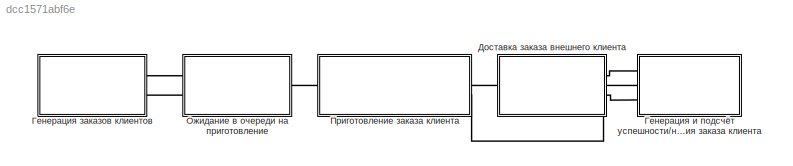
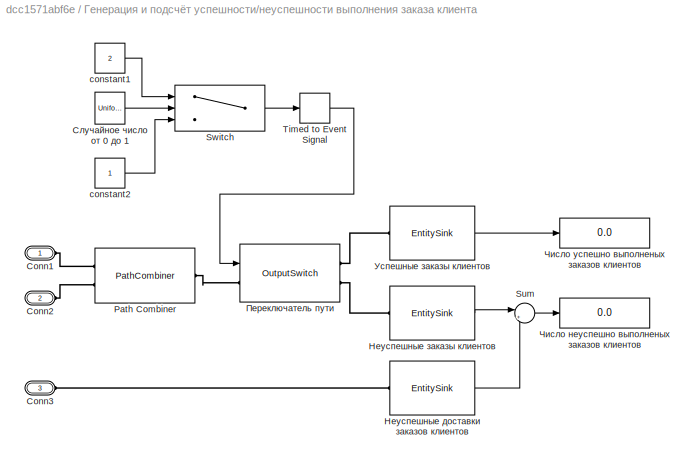
MODEL slx_dcc1571abf6e
KIND model
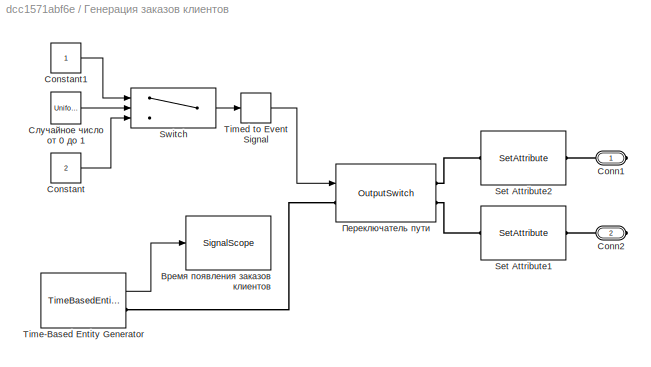
BLOCK [SubSystem] Генерация заказов клиентов
  FunctionWithSeparateData = off
  MaskHideContents = off
  MinAlgLoopOccurrences = off
  Opaque = off
  Ports = [0, 0, 0, 0, 0, 0, 2]
  PropExecContextOutsideSubsystem = off
  RTWSystemCode = Auto
  RequestExecContextInheritance = off
BLOCK [PMIOPort] Генерация заказов клиентов/Conn1
  Port = 1
  Side = Right
BLOCK [PMIOPort] Генерация заказов клиентов/Conn2
  Port = 2
  Side = Right
BLOCK [Constant] Генерация заказов клиентов/Constant
  Value = 2
BLOCK [Constant] Генерация заказов клиентов/Constant1
BLOCK [SetAttribute] Генерация заказов клиентов/Set Attribute1
  AttributeName = client_type
  AttributeValue = 2
  EvaluatedAttributeValue = { 2 }
  Ports = [0, 0, 0, 0, 0, 1, 1]
BLOCK [SetAttribute] Генерация заказов клиентов/Set Attribute2
  AttributeName = client_type
  EvaluatedAttributeValue = { 1 }
  Ports = [0, 0, 0, 0, 0, 1, 1]
BLOCK [Switch] Генерация заказов клиентов/Switch
  InputSameDT = off
  SaturateOnIntegerOverflow = off
  Threshold = 0.30
BLOCK [TimeBasedEntityGenerator] Генерация заказов клиентов/Time-Based Entity Generator
  Distribution = Exponential
  InitialSeed = 12
  Mean = 15
  OutputPortMap = o2
  Ports = [0, 1, 0, 0, 0, 0, 1]
  PriorityEntityGeneration = 500
  StatAverageIntergenerationTime = on
BLOCK [TimedToEventSignal] Генерация заказов клиентов/Timed to Event Signal
  InputPortMap = u0
  OutputPortMap = o0
  Ports = [1, 1]
BLOCK [SignalScope] Генерация заказов клиентов/Время появления заказов клиентов
  CopyFcn = des.scope.CallbackSupport('seCopyFcn',gcbh)
  DeleteFcn = des.scope.CallbackSupport('seDeleteFcn',gcbh)
  InputPortMap = u0
  LoadFcn = des.scope.CallbackSupport('seLoadFcn',gcbh)
  NameChangeFcn = des.scope.CallbackSupport('seNameChangeFcn',gcbh)
  OpenFcn = des.scope.CallbackSupport('seOpenFcn',gcbh)
  Ports = [1]
  PreSaveFcn = des.scope.CallbackSupport('sePreSaveFcn',gcbh)
  ShowCountPlotted = on
  StartFcn = des.scope.CallbackSupport('seStartFcn',gcbh)
  StopFcn = des.scope.CallbackSupport('seStopFcn',gcbh)
BLOCK [OutputSwitch] Генерация заказов клиентов/Переключатель пути 
  InputPortMap = u0
  NumberOutputPorts = 2
  Ports = [1, 0, 0, 0, 0, 1, 2]
  SwitchingCriterion = From signal port p
BLOCK [UniformRandomNumber] Генерация заказов клиентов/Случайное число от 0 до 1
  Minimum = 0
  SampleTime = 0.1
  Seed = 12
BLOCK [SubSystem] Генерация и подсчёт успешности//неуспешности выполнения заказа клиента
  FunctionWithSeparateData = off
  MaskHideContents = off
  MinAlgLoopOccurrences = off
  Opaque = off
  Ports = [0, 0, 0, 0, 0, 3]
  PropExecContextOutsideSubsystem = off
  RTWSystemCode = Auto
  RequestExecContextInheritance = off
BLOCK [PMIOPort] Генерация и подсчёт успешности//неуспешности выполнения заказа клиента/Conn1
  Port = 1
  Side = Left
BLOCK [PMIOPort] Генерация и подсчёт успешности//неуспешности выполнения заказа клиента/Conn2
  Port = 2
  Side = Left
BLOCK [PMIOPort] Генерация и подсчёт успешности//неуспешности выполнения заказа клиента/Conn3
  Port = 3
  Side = Left
BLOCK [PathCombiner] Генерация и подсчёт успешности//неуспешности выполнения заказа клиента/Path Combiner
  NumberInputPorts = 2
  Ports = [0, 0, 0, 0, 0, 2, 1]
BLOCK [Sum] Генерация и подсчёт успешности//неуспешности выполнения заказа клиента/Sum
  IconShape = round
  InputSameDT = off
  Inputs = |++
  OutDataTypeStr = Inherit: Inherit via internal rule
  Ports = [2, 1]
  SaturateOnIntegerOverflow = off
BLOCK [Switch] Генерация и подсчёт успешности//неуспешности выполнения заказа клиента/Switch
  InputSameDT = off
  SaturateOnIntegerOverflow = off
  Threshold = 0.95
BLOCK [TimedToEventSignal] Генерация и подсчёт успешности//неуспешности выполнения заказа клиента/Timed to Event Signal
  InputPortMap = u0
  OutputPortMap = o0
  Ports = [1, 1]
BLOCK [Constant] Генерация и подсчёт успешности//неуспешности выполнения заказа клиента/constant1
  Value = 2
BLOCK [Constant] Генерация и подсчёт успешности//неуспешности выполнения заказа клиента/constant2
BLOCK [EntitySink] Генерация и подсчёт успешности//неуспешности выполнения заказа клиента/Неуспешные доставки заказов клиентов
  OutputPortMap = o0
  Ports = [0, 1, 0, 0, 0, 1]
  StatNumberArrived = on
BLOCK [EntitySink] Генерация и подсчёт успешности//неуспешности выполнения заказа клиента/Неуспешные заказы клиентов
  OutputPortMap = o0
  Ports = [0, 1, 0, 0, 0, 1]
  StatNumberArrived = on
BLOCK [OutputSwitch] Генерация и подсчёт успешности//неуспешности выполнения заказа клиента/Переключатель пути 
  InputPortMap = u0
  NumberOutputPorts = 2
  Ports = [1, 0, 0, 0, 0, 1, 2]
  SwitchingCriterion = From signal port p
BLOCK [UniformRandomNumber] Генерация и подсчёт успешности//неуспешности выполнения заказа клиента/Случайное число от 0 до 1
  Minimum = 0
  SampleTime = 0.1
  Seed = 12
BLOCK [EntitySink] Генерация и подсчёт успешности//неуспешности выполнения заказа клиента/Успешные заказы клиентов
  OutputPortMap = o0
  Ports = [0, 1, 0, 0, 0, 1]
  StatNumberArrived = on
BLOCK [Display] Генерация и подсчёт успешности//неуспешности выполнения заказа клиента/Число неуспешно выполненых заказов клиентов
  Decimation = 1
  Lockdown = off
  Ports = [1]
BLOCK [Display] Генерация и подсчёт успешности//неуспешности выполнения заказа клиента/Число успешно выполненых заказов клиентов
  Decimation = 1
  Lockdown = off
  Ports = [1]
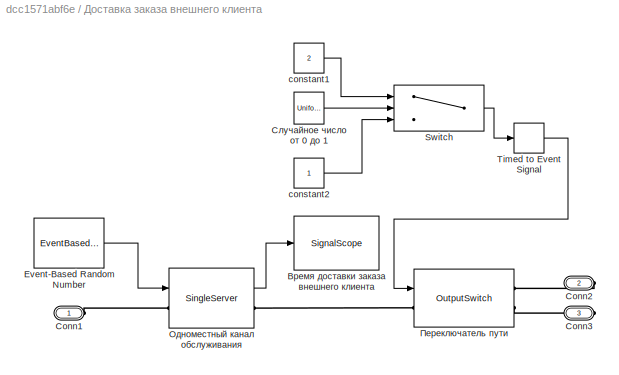
BLOCK [SubSystem] Доставка заказа внешнего клиента
  FunctionWithSeparateData = off
  MaskHideContents = off
  MinAlgLoopOccurrences = off
  Opaque = off
  Ports = [0, 0, 0, 0, 0, 1, 2]
  PropExecContextOutsideSubsystem = off
  RTWSystemCode = Auto
  RequestExecContextInheritance = off
BLOCK [PMIOPort] Доставка заказа внешнего клиента/Conn1
  Port = 1
  Side = Left
BLOCK [PMIOPort] Доставка заказа внешнего клиента/Conn2
  Port = 2
  Side = Right
BLOCK [PMIOPort] Доставка заказа внешнего клиента/Conn3
  Port = 3
  Side = Right
BLOCK [EventBasedRandomNumber] Доставка заказа внешнего клиента/Event-Based Random Number
  Distribution = Uniform
  OutputPortMap = o0
  Ports = [0, 1]
  Seed = 12
  maxUnif = 50
  minUnif = 10
BLOCK [Switch] Доставка заказа внешнего клиента/Switch
  InputSameDT = off
  SaturateOnIntegerOverflow = off
  Threshold = 0.90
BLOCK [TimedToEventSignal] Доставка заказа внешнего клиента/Timed to Event Signal
  InputPortMap = u0
  OutputPortMap = o0
  Ports = [1, 1]
BLOCK [Constant] Доставка заказа внешнего клиента/constant1
  Value = 2
BLOCK [Constant] Доставка заказа внешнего клиента/constant2
BLOCK [SignalScope] Доставка заказа внешнего клиента/Время доставки заказа внешнего клиента
  CopyFcn = des.scope.CallbackSupport('seCopyFcn',gcbh)
  DeleteFcn = des.scope.CallbackSupport('seDeleteFcn',gcbh)
  InputPortMap = u0
  LoadFcn = des.scope.CallbackSupport('seLoadFcn',gcbh)
  NameChangeFcn = des.scope.CallbackSupport('seNameChangeFcn',gcbh)
  OpenFcn = des.scope.CallbackSupport('seOpenFcn',gcbh)
  Ports = [1]
  PreSaveFcn = des.scope.CallbackSupport('sePreSaveFcn',gcbh)
  ShowCountPlotted = on
  StartFcn = des.scope.CallbackSupport('seStartFcn',gcbh)
  StopFcn = des.scope.CallbackSupport('seStopFcn',gcbh)
  XMax = 640
  YMax = 20
BLOCK [SingleServer] Доставка заказа внешнего клиента/Одноместный канал обслуживания
  AttributeName = ServTime
  InputPortMap = u0
  OutputPortMap = o4
  Ports = [1, 1, 0, 0, 0, 1, 1]
  ServiceTimeFrom = Signal port t
  StatAverageWait = on
BLOCK [OutputSwitch] Доставка заказа внешнего клиента/Переключатель пути 
  InputPortMap = u0
  NumberOutputPorts = 2
  Ports = [1, 0, 0, 0, 0, 1, 2]
  SwitchingCriterion = From signal port p
BLOCK [UniformRandomNumber] Доставка заказа внешнего клиента/Случайное число от 0 до 1
  Minimum = 0
  SampleTime = 0.1
  Seed = 12
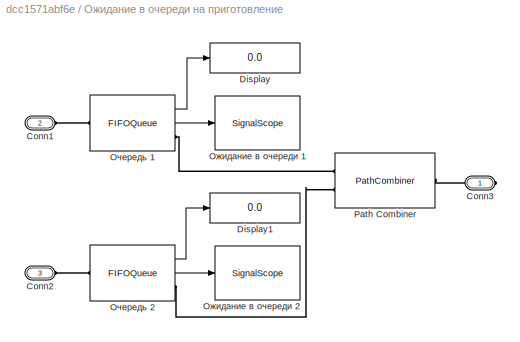
BLOCK [SubSystem] Ожидание в очереди на приготовление
  FunctionWithSeparateData = off
  MaskHideContents = off
  MinAlgLoopOccurrences = off
  Opaque = off
  Ports = [0, 0, 0, 0, 0, 2, 1]
  PropExecContextOutsideSubsystem = off
  RTWSystemCode = Auto
  RequestExecContextInheritance = off
BLOCK [PMIOPort] Ожидание в очереди на приготовление/Conn1
  Port = 2
  Side = Left
BLOCK [PMIOPort] Ожидание в очереди на приготовление/Conn2
  Port = 3
  Side = Left
BLOCK [PMIOPort] Ожидание в очереди на приготовление/Conn3
  Port = 1
  Side = Right
BLOCK [Display] Ожидание в очереди на приготовление/Display
  Decimation = 1
  Lockdown = off
  Ports = [1]
BLOCK [Display] Ожидание в очереди на приготовление/Display1
  Decimation = 1
  Lockdown = off
  Ports = [1]
BLOCK [PathCombiner] Ожидание в очереди на приготовление/Path Combiner
  NumberInputPorts = 2
  Ports = [0, 0, 0, 0, 0, 2, 1]
BLOCK [SignalScope] Ожидание в очереди на приготовление/Ожидание в очереди 1
  CopyFcn = des.scope.CallbackSupport('seCopyFcn',gcbh)
  DeleteFcn = des.scope.CallbackSupport('seDeleteFcn',gcbh)
  InputPortMap = u0
  LoadFcn = des.scope.CallbackSupport('seLoadFcn',gcbh)
  NameChangeFcn = des.scope.CallbackSupport('seNameChangeFcn',gcbh)
  OpenFcn = des.scope.CallbackSupport('seOpenFcn',gcbh)
  Ports = [1]
  PreSaveFcn = des.scope.CallbackSupport('sePreSaveFcn',gcbh)
  ShowCountPlotted = on
  StartFcn = des.scope.CallbackSupport('seStartFcn',gcbh)
  StopFcn = des.scope.CallbackSupport('seStopFcn',gcbh)
BLOCK [SignalScope] Ожидание в очереди на приготовление/Ожидание в очереди 2
  CopyFcn = des.scope.CallbackSupport('seCopyFcn',gcbh)
  DeleteFcn = des.scope.CallbackSupport('seDeleteFcn',gcbh)
  InputPortMap = u0
  LoadFcn = des.scope.CallbackSupport('seLoadFcn',gcbh)
  NameChangeFcn = des.scope.CallbackSupport('seNameChangeFcn',gcbh)
  OpenFcn = des.scope.CallbackSupport('seOpenFcn',gcbh)
  Ports = [1]
  PreSaveFcn = des.scope.CallbackSupport('sePreSaveFcn',gcbh)
  ShowCountPlotted = on
  StartFcn = des.scope.CallbackSupport('seStartFcn',gcbh)
  StopFcn = des.scope.CallbackSupport('seStopFcn',gcbh)
BLOCK [FIFOQueue] Ожидание в очереди на приготовление/Очередь 1
  Capacity = 10
  OutputPortMap = o0,o2
  Ports = [0, 2, 0, 0, 0, 1, 1]
  StatAverageWait = on
  StatNumberDeparted = on
BLOCK [FIFOQueue] Ожидание в очереди на приготовление/Очередь 2 
  Capacity = 10
  OutputPortMap = o0,o2
  Ports = [0, 2, 0, 0, 0, 1, 1]
  StatAverageWait = on
  StatNumberDeparted = on
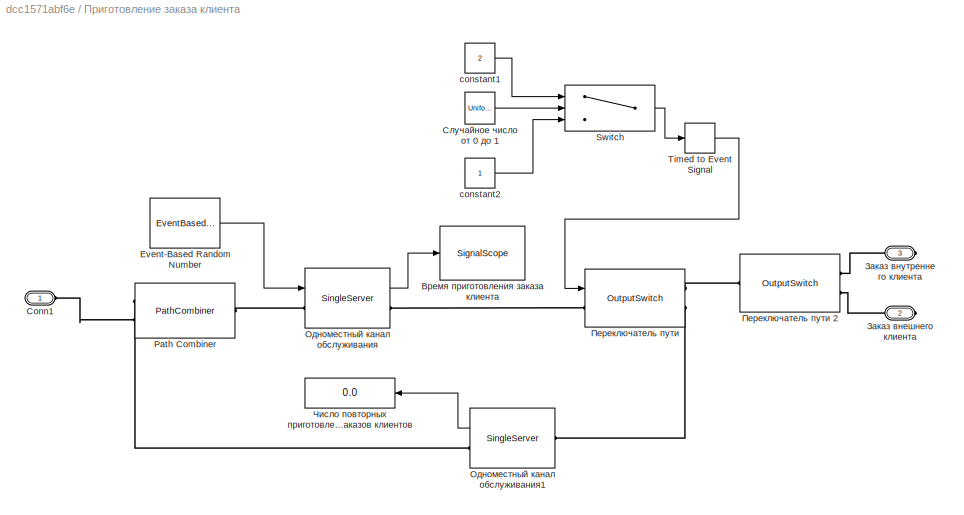
BLOCK [SubSystem] Приготовление заказа клиента
  FunctionWithSeparateData = off
  MaskHideContents = off
  MinAlgLoopOccurrences = off
  Opaque = off
  Ports = [0, 0, 0, 0, 0, 1, 2]
  PropExecContextOutsideSubsystem = off
  RTWSystemCode = Auto
  RequestExecContextInheritance = off
BLOCK [PMIOPort] Приготовление заказа клиента/Conn1
  Port = 1
  Side = Left
BLOCK [EventBasedRandomNumber] Приготовление заказа клиента/Event-Based Random Number
  Distribution = Uniform
  OutputPortMap = o0
  Ports = [0, 1]
  Seed = 12
  maxUnif = 20
  minUnif = 5
BLOCK [PathCombiner] Приготовление заказа клиента/Path Combiner
  NumberInputPorts = 2
  Ports = [0, 0, 0, 0, 0, 2, 1]
BLOCK [Switch] Приготовление заказа клиента/Switch
  InputSameDT = off
  SaturateOnIntegerOverflow = off
  Threshold = 0.95
BLOCK [TimedToEventSignal] Приготовление заказа клиента/Timed to Event Signal
  InputPortMap = u0
  OutputPortMap = o0
  Ports = [1, 1]
BLOCK [Constant] Приготовление заказа клиента/constant1
  Value = 2
BLOCK [Constant] Приготовление заказа клиента/constant2
BLOCK [SignalScope] Приготовление заказа клиента/Время приготовления заказа клиента
  CopyFcn = des.scope.CallbackSupport('seCopyFcn',gcbh)
  DeleteFcn = des.scope.CallbackSupport('seDeleteFcn',gcbh)
  InputPortMap = u0
  LoadFcn = des.scope.CallbackSupport('seLoadFcn',gcbh)
  NameChangeFcn = des.scope.CallbackSupport('seNameChangeFcn',gcbh)
  OpenFcn = des.scope.CallbackSupport('seOpenFcn',gcbh)
  Ports = [1]
  PreSaveFcn = des.scope.CallbackSupport('sePreSaveFcn',gcbh)
  ShowCountPlotted = on
  StartFcn = des.scope.CallbackSupport('seStartFcn',gcbh)
  StopFcn = des.scope.CallbackSupport('seStopFcn',gcbh)
  XMax = 640
  YMax = 20
BLOCK [PMIOPort] Приготовление заказа клиента/Заказ внешнего клиента
  Port = 2
  Side = Right
BLOCK [PMIOPort] Приготовление заказа клиента/Заказ внутреннего клиента
  Port = 3
  Side = Right
BLOCK [SingleServer] Приготовление заказа клиента/Одноместный канал обслуживания
  AttributeName = ServTime
  InputPortMap = u0
  OutputPortMap = o4
  Ports = [1, 1, 0, 0, 0, 1, 1]
  ServiceTimeFrom = Signal port t
  StatAverageWait = on
BLOCK [SingleServer] Приготовление заказа клиента/Одноместный канал обслуживания1
  AttributeName = ServTime
  OutputPortMap = o0
  Ports = [0, 1, 0, 0, 0, 1, 1]
  StatNumberDeparted = on
BLOCK [OutputSwitch] Приготовление заказа клиента/Переключатель пути 
  InputPortMap = u0
  NumberOutputPorts = 2
  Ports = [1, 0, 0, 0, 0, 1, 2]
  SwitchingCriterion = From signal port p
BLOCK [OutputSwitch] Приготовление заказа клиента/Переключатель пути 2
  AttributeName = client_type
  NumberOutputPorts = 2
  Ports = [0, 0, 0, 0, 0, 1, 2]
  SwitchingCriterion = From attribute
BLOCK [UniformRandomNumber] Приготовление заказа клиента/Случайное число от 0 до 1
  Minimum = 0
  SampleTime = 0.1
  Seed = 12
BLOCK [Display] Приготовление заказа клиента/Число повторных приготовлений заказов клиентов
  Decimation = 1
  Lockdown = off
  Ports = [1]
LINE Генерация заказов клиентов/Constant1:1 -> Генерация заказов клиентов/Switch:1
LINE Генерация заказов клиентов/Constant:1 -> Генерация заказов клиентов/Switch:3
LINE Генерация заказов клиентов/Switch:1 -> Генерация заказов клиентов/Timed to Event Signal:1
LINE Генерация заказов клиентов/Time-Based Entity Generator:1 -> Генерация заказов клиентов/Время появления заказов клиентов:1
LINE Генерация заказов клиентов/Timed to Event Signal:1 -> Генерация заказов клиентов/Переключатель пути :1
LINE Генерация заказов клиентов/Случайное число от 0 до 1:1 -> Генерация заказов клиентов/Switch:2
LINE Генерация и подсчёт успешности//неуспешности выполнения заказа клиента/Sum:1 -> Генерация и подсчёт успешности//неуспешности выполнения заказа клиента/Число неуспешно выполненых заказов клиентов:1
LINE Генерация и подсчёт успешности//неуспешности выполнения заказа клиента/Switch:1 -> Генерация и подсчёт успешности//неуспешности выполнения заказа клиента/Timed to Event Signal:1
LINE Генерация и подсчёт успешности//неуспешности выполнения заказа клиента/Timed to Event Signal:1 -> Генерация и подсчёт успешности//неуспешности выполнения заказа клиента/Переключатель пути :1
LINE Генерация и подсчёт успешности//неуспешности выполнения заказа клиента/constant1:1 -> Генерация и подсчёт успешности//неуспешности выполнения заказа клиента/Switch:1
LINE Генерация и подсчёт успешности//неуспешности выполнения заказа клиента/constant2:1 -> Генерация и подсчёт успешности//неуспешности выполнения заказа клиента/Switch:3
LINE Генерация и подсчёт успешности//неуспешности выполнения заказа клиента/Неуспешные доставки заказов клиентов:1 -> Генерация и подсчёт успешности//неуспешности выполнения заказа клиента/Sum:2
LINE Генерация и подсчёт успешности//неуспешности выполнения заказа клиента/Неуспешные заказы клиентов:1 -> Генерация и подсчёт успешности//неуспешности выполнения заказа клиента/Sum:1
LINE Генерация и подсчёт успешности//неуспешности выполнения заказа клиента/Случайное число от 0 до 1:1 -> Генерация и подсчёт успешности//неуспешности выполнения заказа клиента/Switch:2
LINE Генерация и подсчёт успешности//неуспешности выполнения заказа клиента/Успешные заказы клиентов:1 -> Генерация и подсчёт успешности//неуспешности выполнения заказа клиента/Число успешно выполненых заказов клиентов:1
LINE Доставка заказа внешнего клиента/Event-Based Random Number:1 -> Доставка заказа внешнего клиента/Одноместный канал обслуживания:1
LINE Доставка заказа внешнего клиента/Switch:1 -> Доставка заказа внешнего клиента/Timed to Event Signal:1
LINE Доставка заказа внешнего клиента/Timed to Event Signal:1 -> Доставка заказа внешнего клиента/Переключатель пути :1
LINE Доставка заказа внешнего клиента/constant1:1 -> Доставка заказа внешнего клиента/Switch:1
LINE Доставка заказа внешнего клиента/constant2:1 -> Доставка заказа внешнего клиента/Switch:3
LINE Доставка заказа внешнего клиента/Одноместный канал обслуживания:1 -> Доставка заказа внешнего клиента/Время доставки заказа внешнего клиента:1
LINE Доставка заказа внешнего клиента/Случайное число от 0 до 1:1 -> Доставка заказа внешнего клиента/Switch:2
LINE Ожидание в очереди на приготовление/Очередь 1:1 -> Ожидание в очереди на приготовление/Display:1
LINE Ожидание в очереди на приготовление/Очередь 1:2 -> Ожидание в очереди на приготовление/Ожидание в очереди 1:1
LINE Ожидание в очереди на приготовление/Очередь 2 :1 -> Ожидание в очереди на приготовление/Display1:1
LINE Ожидание в очереди на приготовление/Очередь 2 :2 -> Ожидание в очереди на приготовление/Ожидание в очереди 2:1
LINE Приготовление заказа клиента/Event-Based Random Number:1 -> Приготовление заказа клиента/Одноместный канал обслуживания:1
LINE Приготовление заказа клиента/Switch:1 -> Приготовление заказа клиента/Timed to Event Signal:1
LINE Приготовление заказа клиента/Timed to Event Signal:1 -> Приготовление заказа клиента/Переключатель пути :1
LINE Приготовление заказа клиента/constant1:1 -> Приготовление заказа клиента/Switch:1
LINE Приготовление заказа клиента/constant2:1 -> Приготовление заказа клиента/Switch:3
LINE Приготовление заказа клиента/Одноместный канал обслуживания1:1 -> Приготовление заказа клиента/Число повторных приготовлений заказов клиентов:1
LINE Приготовление заказа клиента/Одноместный канал обслуживания:1 -> Приготовление заказа клиента/Время приготовления заказа клиента:1
LINE Приготовление заказа клиента/Случайное число от 0 до 1:1 -> Приготовление заказа клиента/Switch:2
PLINE Генерация заказов клиентов/Conn1:RConn1 -- Генерация заказов клиентов/Set Attribute2:RConn1
PLINE Генерация заказов клиентов/Conn2:RConn1 -- Генерация заказов клиентов/Set Attribute1:RConn1
PLINE Генерация заказов клиентов/Set Attribute1:LConn1 -- Генерация заказов клиентов/Переключатель пути :RConn2
PLINE Генерация заказов клиентов/Set Attribute2:LConn1 -- Генерация заказов клиентов/Переключатель пути :RConn1
PLINE Генерация заказов клиентов/Time-Based Entity Generator:RConn1 -- Генерация заказов клиентов/Переключатель пути :LConn1
PLINE Генерация заказов клиентов:RConn1 -- Ожидание в очереди на приготовление:LConn1
PLINE Генерация заказов клиентов:RConn2 -- Ожидание в очереди на приготовление:LConn2
PLINE Генерация и подсчёт успешности//неуспешности выполнения заказа клиента/Conn1:RConn1 -- Генерация и подсчёт успешности//неуспешности выполнения заказа клиента/Path Combiner:LConn1
PLINE Генерация и подсчёт успешности//неуспешности выполнения заказа клиента/Conn2:RConn1 -- Генерация и подсчёт успешности//неуспешности выполнения заказа клиента/Path Combiner:LConn2
PLINE Генерация и подсчёт успешности//неуспешности выполнения заказа клиента/Conn3:RConn1 -- Генерация и подсчёт успешности//неуспешности выполнения заказа клиента/Неуспешные доставки заказов клиентов:LConn1
PLINE Генерация и подсчёт успешности//неуспешности выполнения заказа клиента/Path Combiner:RConn1 -- Генерация и подсчёт успешности//неуспешности выполнения заказа клиента/Переключатель пути :LConn1
PLINE Генерация и подсчёт успешности//неуспешности выполнения заказа клиента/Неуспешные заказы клиентов:LConn1 -- Генерация и подсчёт успешности//неуспешности выполнения заказа клиента/Переключатель пути :RConn2
PLINE Генерация и подсчёт успешности//неуспешности выполнения заказа клиента/Переключатель пути :RConn1 -- Генерация и подсчёт успешности//неуспешности выполнения заказа клиента/Успешные заказы клиентов:LConn1
PLINE Генерация и подсчёт успешности//неуспешности выполнения заказа клиента:LConn1 -- Доставка заказа внешнего клиента:RConn1
PLINE Генерация и подсчёт успешности//неуспешности выполнения заказа клиента:LConn2 -- Приготовление заказа клиента:RConn2
PLINE Генерация и подсчёт успешности//неуспешности выполнения заказа клиента:LConn3 -- Доставка заказа внешнего клиента:RConn2
PLINE Доставка заказа внешнего клиента/Conn1:RConn1 -- Доставка заказа внешнего клиента/Одноместный канал обслуживания:LConn1
PLINE Доставка заказа внешнего клиента/Conn2:RConn1 -- Доставка заказа внешнего клиента/Переключатель пути :RConn1
PLINE Доставка заказа внешнего клиента/Conn3:RConn1 -- Доставка заказа внешнего клиента/Переключатель пути :RConn2
PLINE Доставка заказа внешнего клиента/Одноместный канал обслуживания:RConn1 -- Доставка заказа внешнего клиента/Переключатель пути :LConn1
PLINE Доставка заказа внешнего клиента:LConn1 -- Приготовление заказа клиента:RConn1
PLINE Ожидание в очереди на приготовление/Conn1:RConn1 -- Ожидание в очереди на приготовление/Очередь 1:LConn1
PLINE Ожидание в очереди на приготовление/Conn2:RConn1 -- Ожидание в очереди на приготовление/Очередь 2 :LConn1
PLINE Ожидание в очереди на приготовление/Conn3:RConn1 -- Ожидание в очереди на приготовление/Path Combiner:RConn1
PLINE Ожидание в очереди на приготовление/Path Combiner:LConn1 -- Ожидание в очереди на приготовление/Очередь 1:RConn1
PLINE Ожидание в очереди на приготовление/Path Combiner:LConn2 -- Ожидание в очереди на приготовление/Очередь 2 :RConn1
PLINE Ожидание в очереди на приготовление:RConn1 -- Приготовление заказа клиента:LConn1
PLINE Приготовление заказа клиента/Conn1:RConn1 -- Приготовление заказа клиента/Path Combiner:LConn2
PLINE Приготовление заказа клиента/Path Combiner:LConn1 -- Приготовление заказа клиента/Одноместный канал обслуживания1:RConn1
PLINE Приготовление заказа клиента/Path Combiner:RConn1 -- Приготовление заказа клиента/Одноместный канал обслуживания:LConn1
PLINE Приготовление заказа клиента/Заказ внешнего клиента:RConn1 -- Приготовление заказа клиента/Переключатель пути 2:RConn2
PLINE Приготовление заказа клиента/Заказ внутреннего клиента:RConn1 -- Приготовление заказа клиента/Переключатель пути 2:RConn1
PLINE Приготовление заказа клиента/Одноместный канал обслуживания1:LConn1 -- Приготовление заказа клиента/Переключатель пути :RConn2
PLINE Приготовление заказа клиента/Одноместный канал обслуживания:RConn1 -- Приготовление заказа клиента/Переключатель пути :LConn1
PLINE Приготовление заказа клиента/Переключатель пути 2:LConn1 -- Приготовление заказа клиента/Переключатель пути :RConn1
